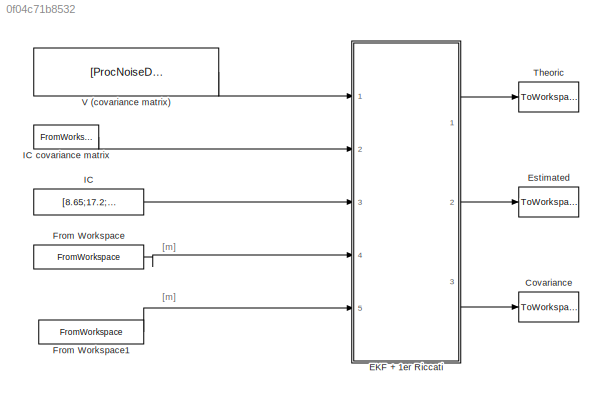
MODEL slx_0f04c71b8532
KIND model
CONFIG AbsTol = auto
CONFIG EnableMultiTasking = on
CONFIG FixedStep = 0.02
CONFIG InitFcn = load('Pose_integration_R_L.mat')\nProcNoiseD=0.01^2; % is a variance\nProcNoiseTheta=0.001^2; % is a variance\n
CONFIG MaxStep = auto
CONFIG MinStep = auto
CONFIG RelTol = 1e-3
CONFIG SampleTimeConstraint = Unconstrained
CONFIG Solver = FixedStepDiscrete
CONFIG SolverName = FixedStepDiscrete
CONFIG StartTime = 0.0
CONFIG StopFcn = I = imread('Enviroment.png');\nx = [0 35.9];\ny=[23.31 0];\nimage(I,'XData',x,'YData',y);\naxis xy;\nhold on\n.....\n.....\nlen=length(Pose_t......);\nfor i=1:round(len/15):len\n    plot_ellipse(Pk.signals.values(1:2,1:2,i),[xEst.signals.values(i,1), xEst.signals.values(i,2)],'g');\nend\n
CONFIG StopTime = 60
BLOCK [ToWorkspace] Covariance
  MaxDataPoints = inf
  Ports = [1]
  SampleTime = -1
  SaveFormat = Structure With Time
  VariableName = Pk
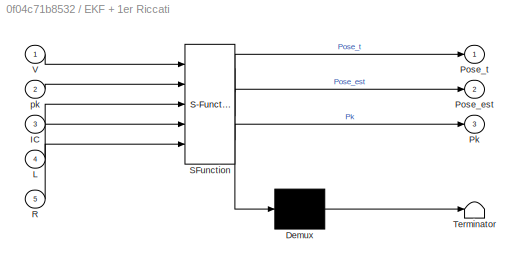
BLOCK [SubSystem] EKF + 1er Riccati
  ErrorFcn = Stateflow.Translate.translate
  PermitHierarchicalResolution = ExplicitOnly
  Ports = [5, 3]
  RequestExecContextInheritance = off
  SFBlockType = MATLAB Function
  TreatAsAtomicUnit = on
BLOCK [Demux] EKF + 1er Riccati/ Demux 
  Outputs = 1
  Ports = [1, 1]
BLOCK [S-Function] EKF + 1er Riccati/ SFunction 
  EnableBusSupport = on
  FunctionName = sf_sfun
  PortCounts = [5 4]
  Ports = [5, 4]
  SFcnIsStateOwnerBlock = off
  SFunctionDeploymentMode = off
  Tag = Stateflow S-Function Todo_EKF_1er_Riccati 2
BLOCK [Terminator] EKF + 1er Riccati/ Terminator 
BLOCK [Inport] EKF + 1er Riccati/IC
  IconDisplay = Port number
  Port = 3
BLOCK [Inport] EKF + 1er Riccati/L
  IconDisplay = Port number
  Port = 4
BLOCK [Outport] EKF + 1er Riccati/Pk
  IconDisplay = Port number
  Port = 3
BLOCK [Outport] EKF + 1er Riccati/Pose_est
  IconDisplay = Port number
  Port = 2
BLOCK [Outport] EKF + 1er Riccati/Pose_t
  IconDisplay = Port number
BLOCK [Inport] EKF + 1er Riccati/R
  IconDisplay = Port number
  Port = 5
BLOCK [Inport] EKF + 1er Riccati/V
  IconDisplay = Port number
BLOCK [Inport] EKF + 1er Riccati/pk
  IconDisplay = Port number
  Port = 2
BLOCK [ToWorkspace] Estimated
  MaxDataPoints = inf
  Ports = [1]
  SampleTime = -1
  SaveFormat = Timeseries
  VariableName = Pose_est
BLOCK [FromWorkspace] From Workspace
  SampleTime = 0
  VariableName = L
  ZeroCross = on
BLOCK [FromWorkspace] From Workspace1
  SampleTime = 0
  VariableName = R
  ZeroCross = on
BLOCK [Constant] IC
  Value = [8.65;17.2;-pi/2]
BLOCK [FromWorkspace] IC covariance matrix
  VariableName = pk
  ZeroCross = on
BLOCK [ToWorkspace] Theoric
  MaxDataPoints = inf
  Ports = [1]
  SampleTime = -1
  SaveFormat = Timeseries
  VariableName = Pose_t
BLOCK [Constant] V (covariance matrix)
  Value = [ProcNoiseD 0;0 ProcNoiseTheta]
  VectorParams1D = off
ANNOTATION (root): [m]
LINE EKF + 1er Riccati:1 -> Theoric:1
LINE EKF + 1er Riccati:2 -> Estimated:1
LINE EKF + 1er Riccati:3 -> Covariance:1
LINE From Workspace1:1 -> EKF + 1er Riccati:5
LINE From Workspace:1 -> EKF + 1er Riccati:4
LINE IC covariance matrix:1 -> EKF + 1er Riccati:2
LINE IC:1 -> EKF + 1er Riccati:3
LINE V (covariance matrix):1 -> EKF + 1er Riccati:1
CHART EKF + 1er Riccati states=1 transitions=1
  STATE_LABEL 'eML_blk_kernel()'
  STATE_LABEL 'SCRIPT:\nfunction [Pose_t,Pose_est,Pk] = fcn(V,pk,IC,L,R) % IC->Initial Condition [xo,yo,th0]\n                                   % R and L are the displacements of\n                                   % wheels [m]\npersistent x_w y_w suma_theta e_x e_y e_t Pkp %  internal variable to be mantain its values\n\nts=0.02; % sample time\nS = 4;\n\n%%%%%%%%%%%%%%%%%%%%%%%%%%%%%%%%%%%%%%%%%%%%%%%%%%%%%%%%%%%%%%%%%...<+1879ch>'
